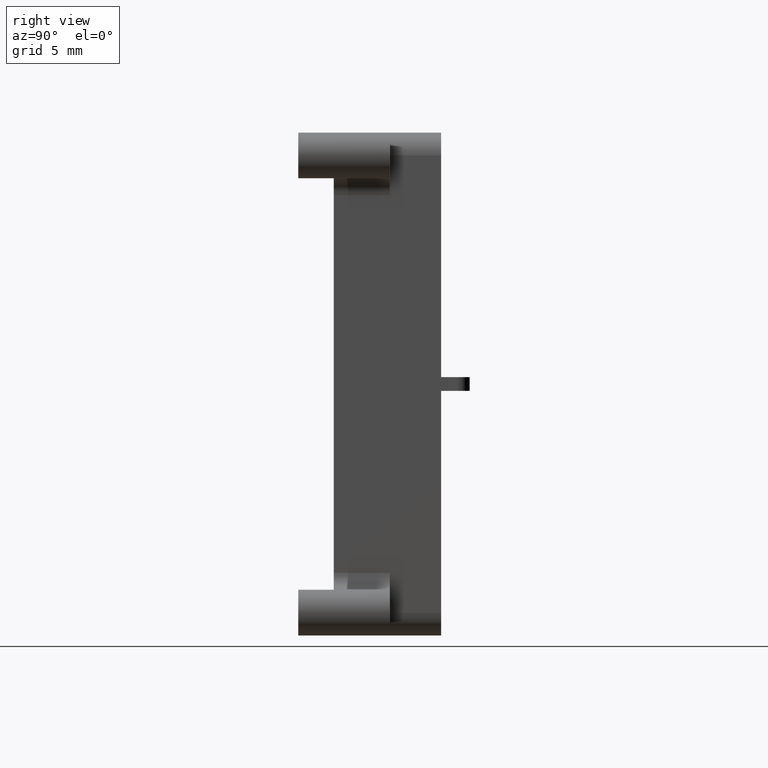
[diagram: clean part render]
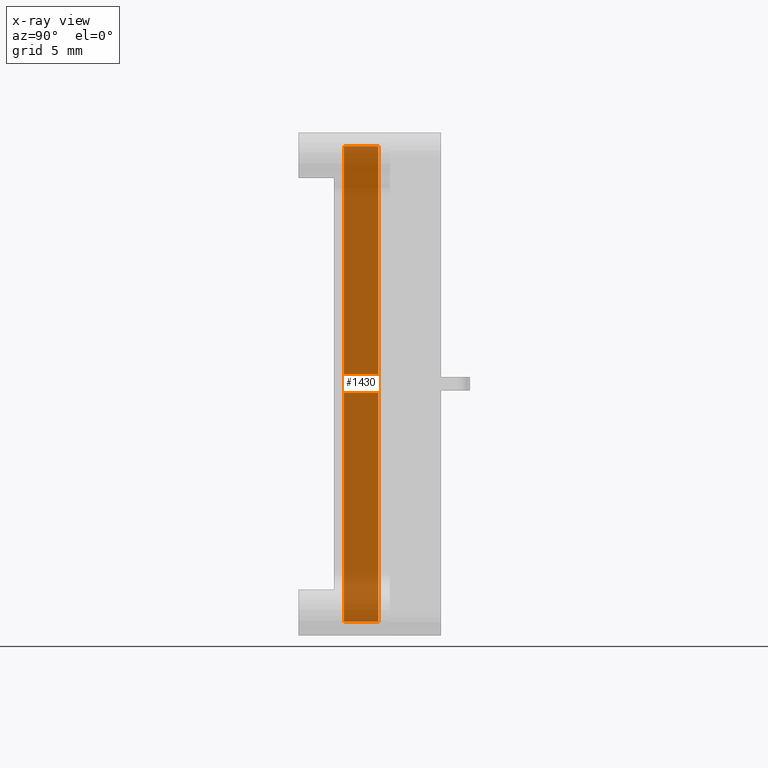
[diagram: x-ray — body ghosted, one internal face saturated and labeled with its STEP entity id]
A machine part, right view, then the same camera in x-ray: the body is ghosted and one INTERNAL B-rep face — a face not visible from any outside direction — is saturated and labeled: STEP entity #1430.
In plain terms, the highlighted planar face has unit normal (1, 0, 0).
Its self-contained STEP definition (entity closure, byte-faithful):
#38 = AXIS2_PLACEMENT_3D ( 'NONE', #2938, #2915, #2916 ) ;
#80 = VECTOR ( 'NONE', #2055, 1000.000000000000000 ) ;
#194 = VECTOR ( 'NONE', #2463, 1000.000000000000000 ) ;
#255 = VECTOR ( 'NONE', #2543, 1000.000000000000000 ) ;
#296 = VECTOR ( 'NONE', #2568, 1000.000000000000000 ) ;
#585 = EDGE_LOOP ( 'NONE', ( #1219, #1229, #1206, #1212 ) ) ;
#703 = VERTEX_POINT ( 'NONE', #884 ) ;
#758 = VERTEX_POINT ( 'NONE', #912 ) ;
#760 = VERTEX_POINT ( 'NONE', #913 ) ;
#817 = VERTEX_POINT ( 'NONE', #965 ) ;
#884 = CARTESIAN_POINT ( 'NONE',  ( 446.1252094327941800, 144.0878730676890000, 1.200000000000012400 ) ) ;
#912 = CARTESIAN_POINT ( 'NONE',  ( 446.1252094327941200, 144.0878730676890000, 22.00000000000006000 ) ) ;
#913 = CARTESIAN_POINT ( 'NONE',  ( 446.1252094327941200, 145.5878730676890000, 22.00000000000003600 ) ) ;
#965 = CARTESIAN_POINT ( 'NONE',  ( 446.1252094327941200, 145.5878730676890000, 1.200000000000025700 ) ) ;
#1206 = ORIENTED_EDGE ( 'NONE', *, *, #1622, .F. ) ;
#1212 = ORIENTED_EDGE ( 'NONE', *, *, #1583, .T. ) ;
#1219 = ORIENTED_EDGE ( 'NONE', *, *, #1483, .T. ) ;
#1229 = ORIENTED_EDGE ( 'NONE', *, *, #1619, .F. ) ;
#1430 = ADVANCED_FACE ( 'NONE', ( #2937 ), #2868, .T. ) ;
#1483 = EDGE_CURVE ( 'NONE', #758, #703, #2063, .T. ) ;
#1583 = EDGE_CURVE ( 'NONE', #760, #758, #2424, .T. ) ;
#1619 = EDGE_CURVE ( 'NONE', #817, #703, #2546, .T. ) ;
#1622 = EDGE_CURVE ( 'NONE', #760, #817, #2485, .T. ) ;
#2055 = DIRECTION ( 'NONE',  ( 3.492165866658290600E-015, 0.0000000000000000000, -1.000000000000000000 ) ) ;
#2063 = LINE ( 'NONE', #2090, #80 ) ;
#2090 = CARTESIAN_POINT ( 'NONE',  ( 446.1252094327941200, 144.0878730676890000, 22.00000000000004600 ) ) ;
#2396 = CARTESIAN_POINT ( 'NONE',  ( 446.1252094327941200, 146.0878730676890000, 22.00000000000005000 ) ) ;
#2424 = LINE ( 'NONE', #2396, #194 ) ;
#2463 = DIRECTION ( 'NONE',  ( 2.625714205539854300E-033, -1.000000000000000000, 9.169429524186070000E-048 ) ) ;
#2485 = LINE ( 'NONE', #2524, #255 ) ;
#2524 = CARTESIAN_POINT ( 'NONE',  ( 446.1252094327941200, 145.5878730676890000, 22.00000000000003200 ) ) ;
#2543 = DIRECTION ( 'NONE',  ( -0.0000000000000000000, -2.733577826868160200E-020, -1.000000000000000000 ) ) ;
#2546 = LINE ( 'NONE', #2564, #296 ) ;
#2564 = CARTESIAN_POINT ( 'NONE',  ( 446.1252094327941800, 145.5878730676890000, 1.200000000000008400 ) ) ;
#2568 = DIRECTION ( 'NONE',  ( -9.546107180843072800E-035, -1.000000000000000000, 2.733577826868160200E-020 ) ) ;
#2868 = PLANE ( 'NONE',  #38 ) ;
#2915 = DIRECTION ( 'NONE',  ( 1.000000000000000000, 2.625714205539854300E-033, 3.492165866658290600E-015 ) ) ;
#2916 = DIRECTION ( 'NONE',  ( 3.492165866658290600E-015, 0.0000000000000000000, -1.000000000000000000 ) ) ;
#2937 = FACE_OUTER_BOUND ( 'NONE', #585, .T. ) ;
#2938 = CARTESIAN_POINT ( 'NONE',  ( 446.1252094327941200, 146.0878730676890000, 22.00000000000004600 ) ) ;